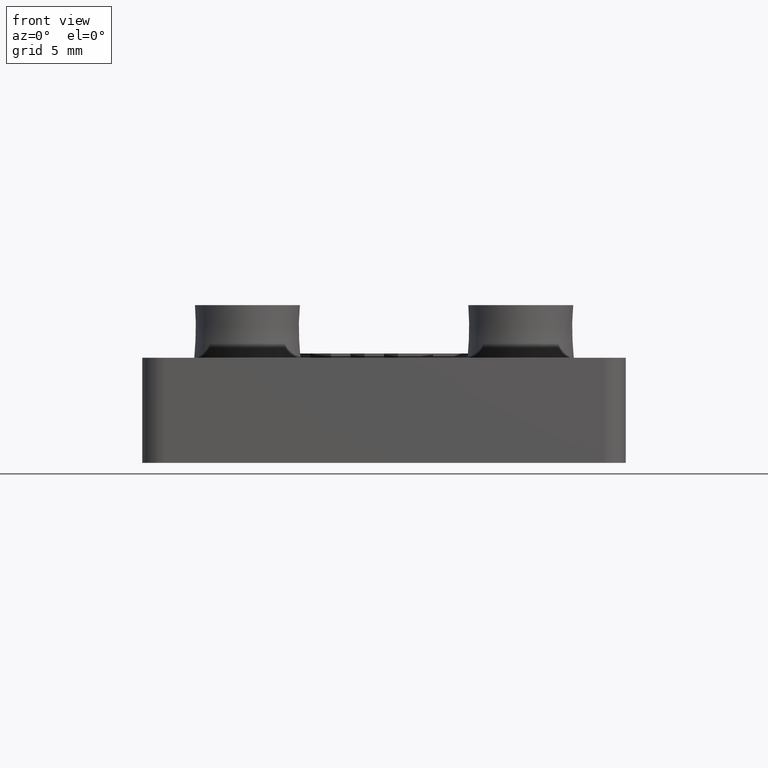
[diagram: clean part render]
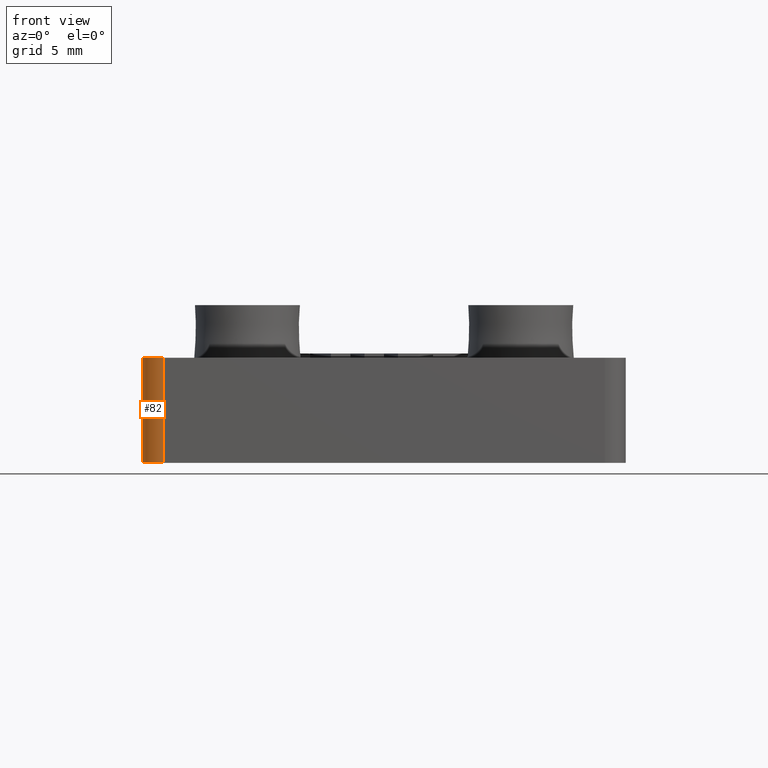
[diagram: same view with one face highlighted and labeled with its STEP entity id]
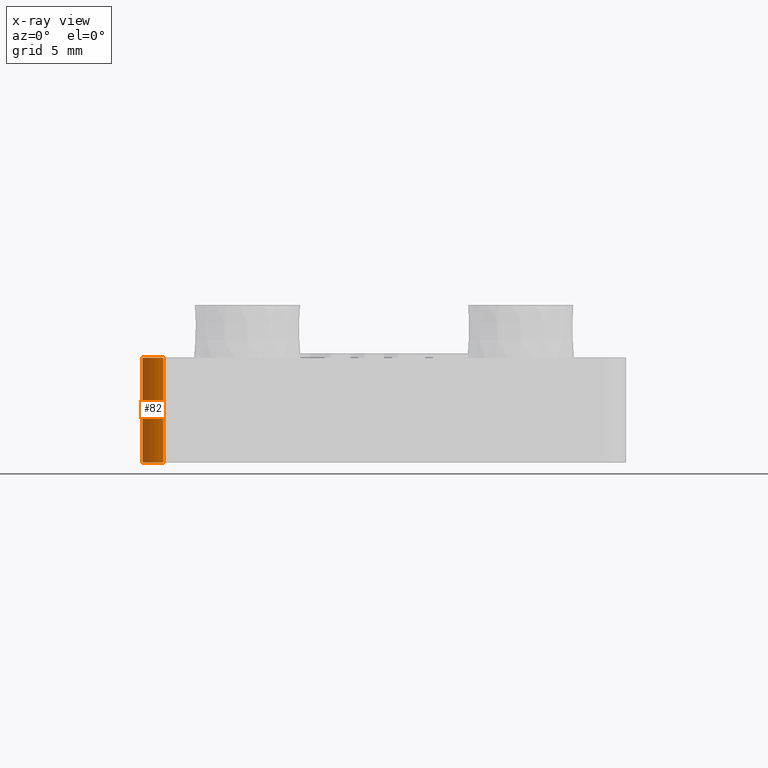
[diagram: x-ray of the same camera — body ghosted, the highlighted face saturated]
A machine part, front view. The second image highlights one B-rep face of the part: STEP entity #82.
The next image is the same camera in x-ray: the body ghosted, the highlighted face saturated — about 0% of this face is hidden behind the body in this view.
In plain terms, the highlighted cylindrical surface (edge-blend (fillet) strip) has radius 1 mm, axis along (-0, 0, 1).
Its self-contained STEP definition (entity closure, byte-faithful):
#82 = ADVANCED_FACE( '', ( #274 ), #275, .T. );
#274 = FACE_OUTER_BOUND( '', #620, .T. );
#275 = CYLINDRICAL_SURFACE( '', #621, 1.00000000000000 );
#620 = EDGE_LOOP( '', ( #1111, #1112, #1113, #1114 ) );
#621 = AXIS2_PLACEMENT_3D( '', #1115, #1116, #1117 );
#1111 = ORIENTED_EDGE( '', *, *, #2314, .F. );
#1112 = ORIENTED_EDGE( '', *, *, #2330, .T. );
#1113 = ORIENTED_EDGE( '', *, *, #2359, .T. );
#1114 = ORIENTED_EDGE( '', *, *, #2307, .F. );
#1115 = CARTESIAN_POINT( '', ( -10.5000000000000, -11.5000000000000, 66.8461441191976 ) );
#1116 = DIRECTION( '', ( -1.49519739311857E-016, 2.33178017899756E-016, 1.00000000000000 ) );
#1117 = DIRECTION( '', ( -1.00000000000000, 4.62592926927148E-016, -1.49519739311857E-016 ) );
#2307 = EDGE_CURVE( '', #2805, #2807, #2808, .T. );
#2314 = EDGE_CURVE( '', #2818, #2805, #2820, .T. );
#2330 = EDGE_CURVE( '', #2818, #2850, #2852, .T. );
#2359 = EDGE_CURVE( '', #2850, #2807, #2904, .T. );
#2805 = VERTEX_POINT( '', #3570 );
#2807 = VERTEX_POINT( '', #3573 );
#2808 = CIRCLE( '', #3574, 1.00000000000000 );
#2818 = VERTEX_POINT( '', #3587 );
#2820 = LINE( '', #3590, #3591 );
#2850 = VERTEX_POINT( '', #3633 );
#2852 = CIRCLE( '', #3636, 1.00000000000000 );
#2904 = LINE( '', #3711, #3712 );
#3570 = CARTESIAN_POINT( '', ( -10.5000000000000, -12.5000000000000, 7.65378971138986E-016 ) );
#3573 = CARTESIAN_POINT( '', ( -11.5000000000000, -11.5000000000000, 7.04148653447869E-016 ) );
#3574 = AXIS2_PLACEMENT_3D( '', #4429, #4430, #4431 );
#3587 = CARTESIAN_POINT( '', ( -10.5000000000000, -12.5000000000000, 5.00000000000000 ) );
#3590 = CARTESIAN_POINT( '', ( -10.5000000000000, -12.5000000000000, 66.8461441191976 ) );
#3591 = VECTOR( '', #4442, 1000.00000000000 );
#3633 = CARTESIAN_POINT( '', ( -11.5000000000000, -11.5000000000000, 5.00000000000000 ) );
#3636 = AXIS2_PLACEMENT_3D( '', #4462, #4463, #4464 );
#3711 = CARTESIAN_POINT( '', ( -11.5000000000000, -11.5000000000000, 66.8461441191976 ) );
#3712 = VECTOR( '', #4503, 1000.00000000000 );
#4429 = CARTESIAN_POINT( '', ( -10.5000000000000, -11.5000000000000, -6.23474525045936E-015 ) );
#4430 = DIRECTION( '', ( 0.000000000000000, -6.12303176911189E-017, -1.00000000000000 ) );
#4431 = DIRECTION( '', ( 0.000000000000000, 1.00000000000000, -6.12303176911189E-017 ) );
#4442 = DIRECTION( '', ( 1.49519739311857E-016, -2.33178017899756E-016, -1.00000000000000 ) );
#4462 = CARTESIAN_POINT( '', ( -10.5000000000000, -11.5000000000000, 5.00000000000000 ) );
#4463 = DIRECTION( '', ( 0.000000000000000, -6.12303176911189E-017, -1.00000000000000 ) );
#4464 = DIRECTION( '', ( 0.000000000000000, 1.00000000000000, -6.12303176911189E-017 ) );
#4503 = DIRECTION( '', ( 1.49519739311857E-016, -2.33178017899756E-016, -1.00000000000000 ) );